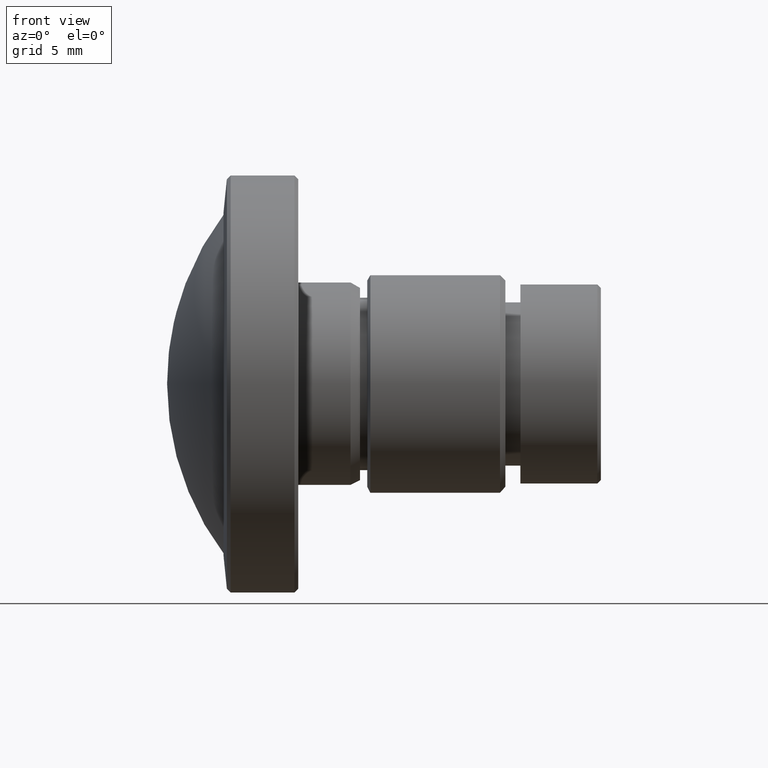
[diagram: clean part render]
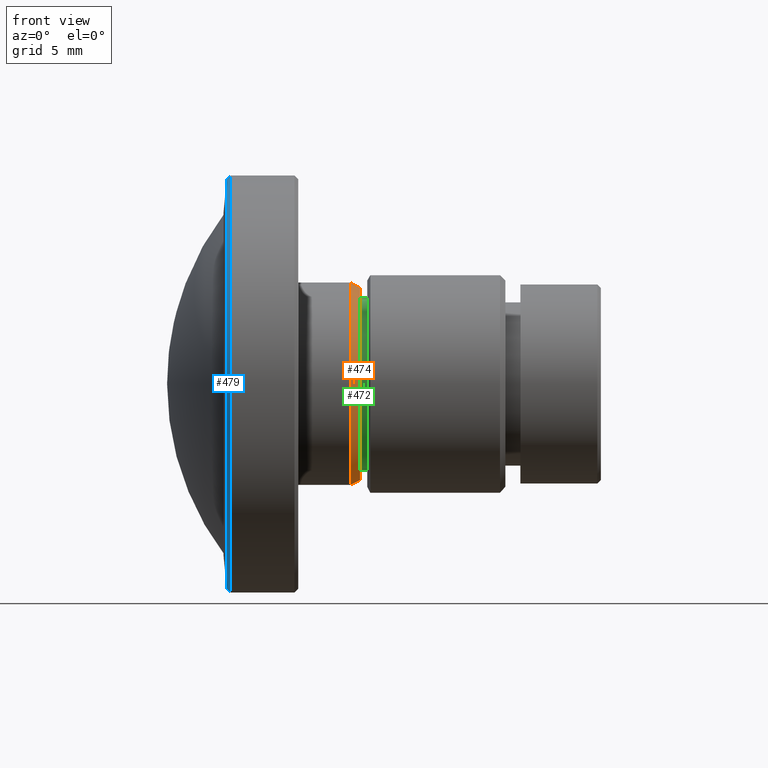
[diagram: same view with three faces highlighted in distinct colors, each labeled with its STEP entity id]
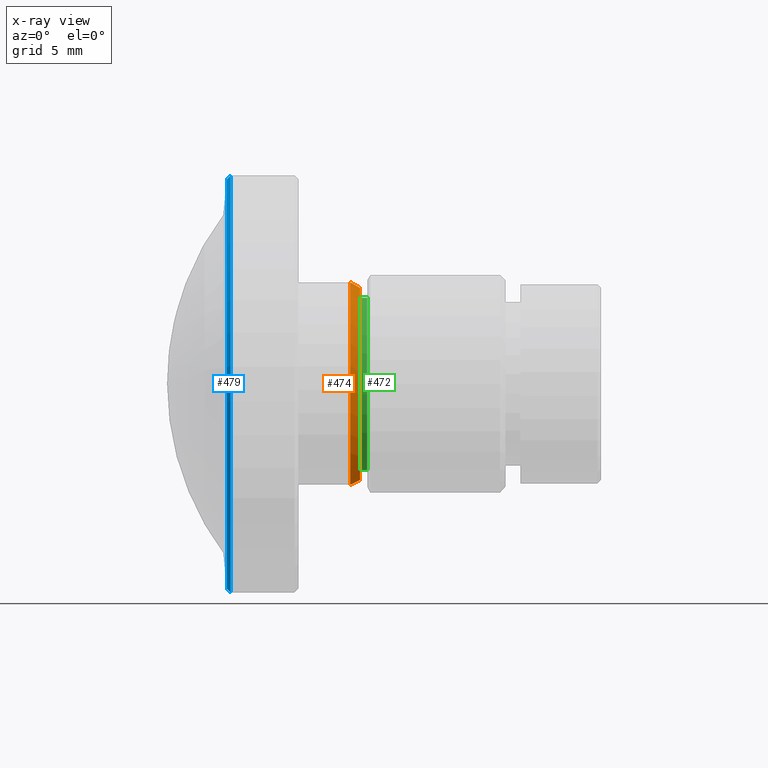
[diagram: x-ray of the same camera — body ghosted, the three highlighted faces saturated]
A machine part, front view with three faces highlighted in distinct colors.
The next image is the same camera in x-ray (body ghosted, the three faces saturated) — at least one of them is partly hidden behind the body in this view.
Their STEP definitions:

[orange] entity #474 — the highlighted conical surface has half-angle 30 deg.
#24=CONICAL_SURFACE('',#524,5.30000000000001,0.523598775598295);
#74=ORIENTED_EDGE('',*,*,#107,.F.);
#75=ORIENTED_EDGE('',*,*,#106,.T.);
#106=EDGE_CURVE('',#131,#131,#156,.T.);
#107=EDGE_CURVE('',#132,#132,#157,.T.);
#131=VERTEX_POINT('',#698);
#132=VERTEX_POINT('',#701);
#156=CIRCLE('',#523,5.30000000000001);
#157=CIRCLE('',#525,5.60000000000001);
#199=EDGE_LOOP('',(#74));
#200=EDGE_LOOP('',(#75));
#249=FACE_BOUND('',#199,.T.);
#250=FACE_BOUND('',#200,.T.);
#474=ADVANCED_FACE('',(#249,#250),#24,.T.);
#523=AXIS2_PLACEMENT_3D('',#697,#613,#614);
#524=AXIS2_PLACEMENT_3D('',#699,#615,#616);
#525=AXIS2_PLACEMENT_3D('',#700,#617,#618);
#613=DIRECTION('',(-1.,0.,0.));
#614=DIRECTION('',(0.,0.,1.));
#615=DIRECTION('',(-1.,0.,0.));
#616=DIRECTION('',(0.,0.,1.));
#617=DIRECTION('',(-1.,0.,0.));
#618=DIRECTION('',(0.,0.,1.));
#697=CARTESIAN_POINT('',(-16.1217036855417,0.,0.));
#698=CARTESIAN_POINT('',(-16.1217036855417,0.,5.30000000000001));
#699=CARTESIAN_POINT('',(-16.1217036855417,0.,0.));
#700=CARTESIAN_POINT('',(-16.6413189278124,0.,0.));
#701=CARTESIAN_POINT('',(-16.6413189278124,0.,5.60000000000001));

[blue] entity #479 — the highlighted conical surface has half-angle 45 deg.
#26=CONICAL_SURFACE('',#534,11.5,0.785398163397498);
#84=ORIENTED_EDGE('',*,*,#112,.F.);
#85=ORIENTED_EDGE('',*,*,#111,.T.);
#111=EDGE_CURVE('',#136,#136,#161,.T.);
#112=EDGE_CURVE('',#137,#137,#162,.T.);
#136=VERTEX_POINT('',#713);
#137=VERTEX_POINT('',#716);
#161=CIRCLE('',#533,11.5);
#162=CIRCLE('',#535,11.2889273170655);
#209=EDGE_LOOP('',(#84));
#210=EDGE_LOOP('',(#85));
#259=FACE_BOUND('',#209,.T.);
#260=FACE_BOUND('',#210,.T.);
#479=ADVANCED_FACE('',(#259,#260),#26,.T.);
#533=AXIS2_PLACEMENT_3D('',#712,#633,#634);
#534=AXIS2_PLACEMENT_3D('',#714,#635,#636);
#535=AXIS2_PLACEMENT_3D('',#715,#637,#638);
#633=DIRECTION('',(-1.,0.,0.));
#634=DIRECTION('',(0.,0.,1.));
#635=DIRECTION('',(1.,0.,0.));
#636=DIRECTION('',(0.,0.,-1.));
#637=DIRECTION('',(-1.,0.,0.));
#638=DIRECTION('',(0.,0.,1.));
#712=CARTESIAN_POINT('',(-23.249582197513,0.,0.));
#713=CARTESIAN_POINT('',(-23.249582197513,0.,11.5));
#714=CARTESIAN_POINT('',(-23.249582197513,0.,0.));
#715=CARTESIAN_POINT('',(-23.4606548804475,0.,0.));
#716=CARTESIAN_POINT('',(-23.4606548804475,0.,11.2889273170655));

[green] entity #472 — the highlighted cylindrical surface (bore or boss wall) has radius 4.75 mm, axis along (-1, 0, 0).
#70=ORIENTED_EDGE('',*,*,#105,.F.);
#71=ORIENTED_EDGE('',*,*,#104,.T.);
#104=EDGE_CURVE('',#129,#129,#154,.T.);
#105=EDGE_CURVE('',#130,#130,#155,.T.);
#129=VERTEX_POINT('',#692);
#130=VERTEX_POINT('',#695);
#154=CIRCLE('',#519,4.74999999999999);
#155=CIRCLE('',#521,4.75);
#195=EDGE_LOOP('',(#70));
#196=EDGE_LOOP('',(#71));
#245=FACE_BOUND('',#195,.T.);
#246=FACE_BOUND('',#196,.T.);
#268=CYLINDRICAL_SURFACE('',#520,4.75);
#472=ADVANCED_FACE('',(#245,#246),#268,.T.);
#519=AXIS2_PLACEMENT_3D('',#691,#605,#606);
#520=AXIS2_PLACEMENT_3D('',#693,#607,#608);
#521=AXIS2_PLACEMENT_3D('',#694,#609,#610);
#605=DIRECTION('',(-1.,0.,0.));
#606=DIRECTION('',(0.,0.,1.));
#607=DIRECTION('',(-1.,0.,0.));
#608=DIRECTION('',(0.,0.,1.));
#609=DIRECTION('',(-1.,0.,0.));
#610=DIRECTION('',(0.,0.,1.));
#691=CARTESIAN_POINT('',(-15.7217036855418,0.,0.));
#692=CARTESIAN_POINT('',(-15.7217036855418,0.,4.74999999999999));
#693=CARTESIAN_POINT('',(-60.,0.,0.));
#694=CARTESIAN_POINT('',(-16.1217036855419,0.,0.));
#695=CARTESIAN_POINT('',(-16.1217036855419,0.,4.75));